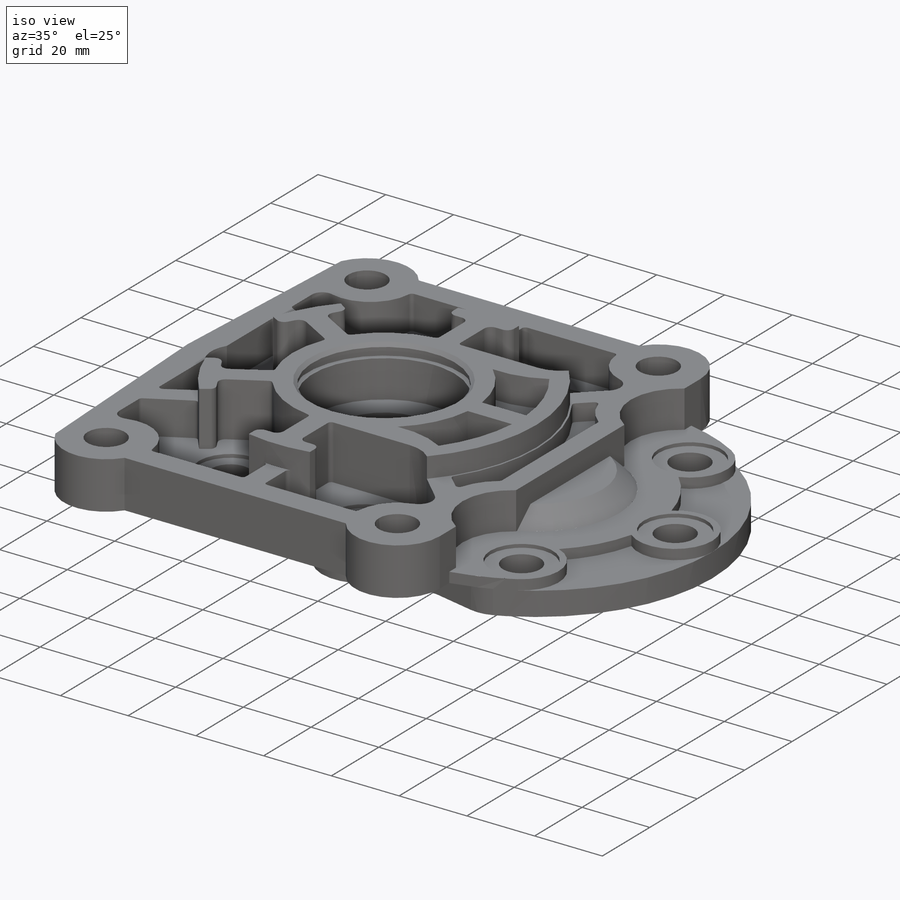
[diagram: iso view]
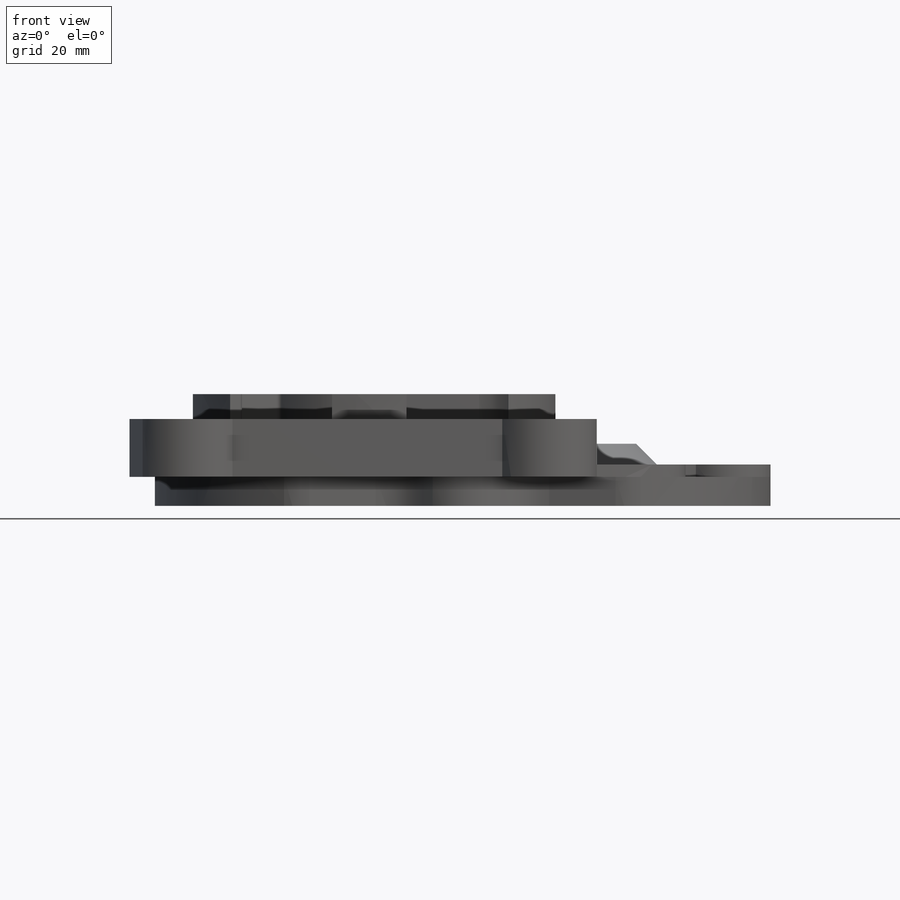
[diagram: front view]
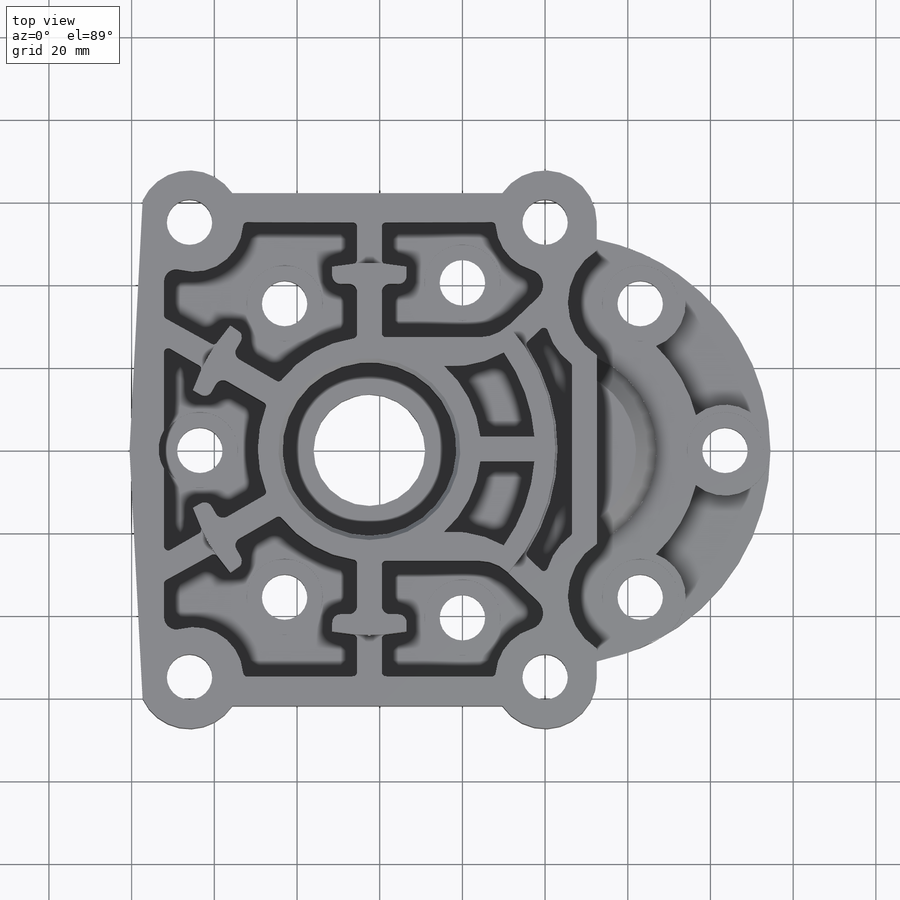
[diagram: top view]
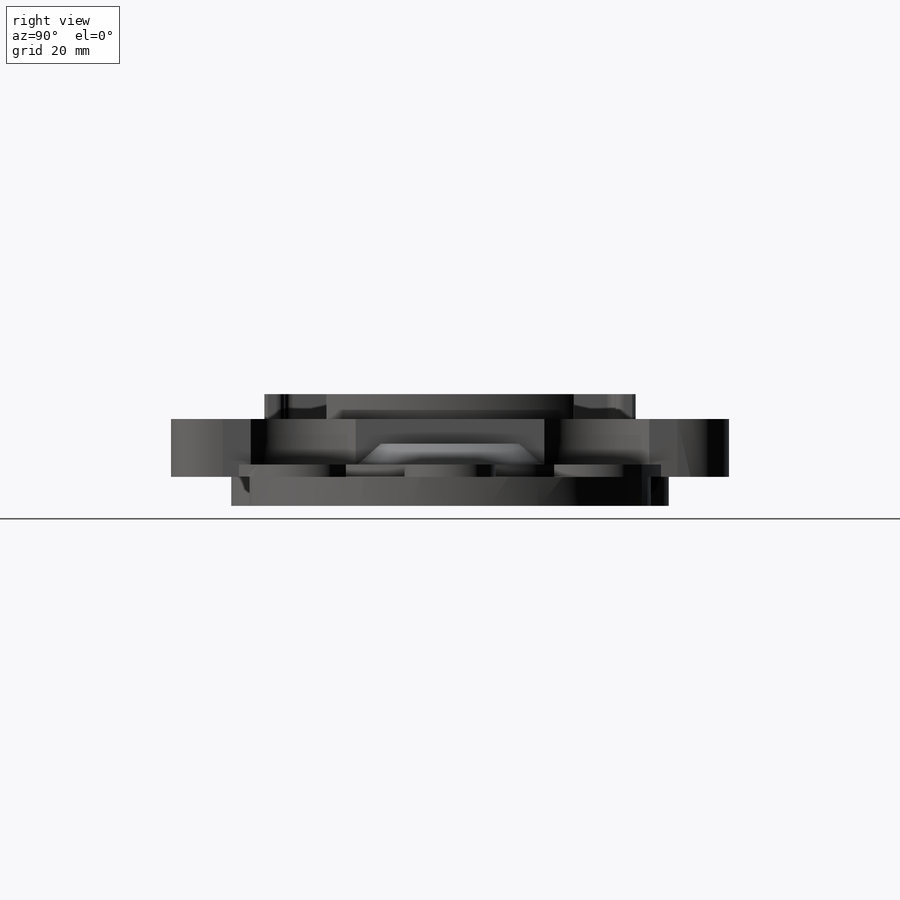
[diagram: right view]
SOLIDWORKS PART (.sldprt)
format: sldprt  version: not decoded by parser v0  size: 1,161,216 bytes
history: native  units: mm
features: sketch x28, cut_extrude x14, extrude x5, plane x4, hole x4, material x1, pattern_circular x1, fillet x1, cut_revolve x1, chamfer x1 (+8 scaffold rows collapsed)
feature tree (68):
  scaffold x8  (default folders/planes/origin — collapsed)
  material  "АЛ8Т4 ГОСТ 1583-93"
  plane  "Спереди"
  plane  "Сверху"
  plane  "Справа"
  sketch  "Эскиз1"  dims[c1.D2=27.0mm c1.D3=27.0mm c1.D4=104.0mm c1.D5=104.0mm c1.D6=30.0mm c1.D7=30.0mm c1.D9=25.0mm c1.D10=25.0mm c1.D11=25.0mm c1.D12=25.0mm c2.D4=52.0mm c2.D2=52.0mm c2.D5=25.0mm c2.D1=12.5mm c2.D6=12.5mm c2.D10=12.0mm c2.D11=12.0mm c2.D12=10.0mm c3.D1=200.0mm c3.D8=106.0mm c3.D13=38.5mm c3.D3=149.0mm c3.D5=40.0mm c3.D7=40.0mm c3.D9=86.0mm]
  extrude  "Бобышка-Вытянуть1"  Depth=7mm
  plane  "Плоскость1"  Offset=7mm
  sketch  "Эскиз2"  dims[c1.D6=12.0mm c1.D7=12.0mm c1.D11=25.0mm c1.D12=25.0mm c1.D2=30.0mm c1.D3=15.0mm c2.D2=15.0mm c2.D15=12.5mm c2.D1=124.0mm c3.D2=113.0mm c3.D3=3.0mm c3.D4=6.0mm c3.D5=3.0mm c3.D8=74.0mm c3.D9=12.0mm c3.D10=55.0mm c4.D5=71.0mm c4.D9=15.0mm c4.D13=113.0mm c4.D14=124.0mm c4.D15=~57.681706mm c5.D15=87.0deg c5.D16=~57.760967mm c6.D16=~86.998075deg c6.D4=~38.538941mm c6.D9=8.0mm c7.D4=6.0mm]
  extrude  "Бобышка-Вытянуть2"  Depth=14mm
  sketch  "Эскиз4"  dims[D1=90.0mm D2=10.0mm]
  extrude  "Бобышка-Вытянуть3"  Depth=6mm
  sketch  "Эскиз5"  dims[D1=42.0mm]
  cut_extrude  "Вырез-Вытянуть2"  Depth=15mm
  sketch  "Эскиз6"  dims[D1=27.0mm]
  cut_extrude  "Вырез-Вытянуть3"  [1 undecoded]
  sketch  "Эскиз8"  dims[c1.D1=54.0mm c1.D5=2.0mm c1.D8=24.0mm c1.D7=10.0mm c1.D9=4.0mm c1.D10=1.0mm c1.D11=1.0mm c1.D12=1.0mm c2.D8=12.0mm c2.D2=6.0mm c2.D3=5.0mm c2.D4=18.0mm c2.D6=10.0mm c2.D7=27.0mm c2.D13=4.5mm]
  cut_extrude  "Вырез-Вытянуть4"  Depth=10mm
  sketch  "Эскиз9"  dims[c1.D3=2.0mm c1.D4=1.0mm c1.D5=1.0mm c1.D6=54.0mm c1.D10=18.0mm c1.D12=1.0mm c1.D13=54.0mm c1.D2=1.0mm c2.D3=3.0mm c2.D4=1.0mm c2.D1=6.0mm c2.D2=18.0mm c2.D8=~60.336635mm c3.D8=177.0deg c4.D8=~8.660254mm c5.D8=30.0deg c6.D8=~68.70887mm c7.D8=30.0deg c7.D9=~18.465053mm c7.D11=42.0mm c7.D4=~11.482801mm c8.D4=~241.110844deg c9.D4=~13.114867mm]
  cut_extrude  "Вырез-Вытянуть5"  Depth=10mm
  sketch  "Эскиз10"  dims[D1=54.0mm D2=80.0mm D4=25.0mm D3=6.0mm D5=45.0mm D6=20.0mm]
  cut_extrude  "Вырез-Вытянуть6"  Depth=8mm
  hole  "Цековка для  винта с круглой головкой M101"  [1 undecoded]
  sketch  "Эскиз13"  dims[D2=27.0mm D1=41.0mm]
  sketch  "Эскиз14"  dims[hole-wizard template sketch: 41 standard entries collapsed; hole parameters kept: c12.Диаметр сквозного отверстия=11.0mm c12.Глубина сквозного отверстия=11.0mm c12.Диаметр цековки=18.5mm c12.Глубина цековки=1.0mm]
  pattern_circular  "Круговой массив1"  Count=6 Angle=60deg
  hole  "Цековка для  винта с круглой головкой M103"  [1 undecoded]
  sketch  "Эскиз30"  dims[D1=81.0mm]
  sketch  "Эскиз29"  dims[hole-wizard template sketch: 41 standard entries collapsed; hole parameters kept: c12.Диаметр сквозного отверстия=11.0mm c12.Глубина сквозного отверстия=11.0mm c12.Диаметр цековки=18.5mm c12.Глубина цековки=1.0mm]
  sketch  "Эскиз15"  dims[c1.D2=22.0mm c1.D6=104.0mm c1.D7=35.0mm c1.D8=35.0mm c1.D9=7.0mm c1.D1=17.0mm c1.D4=~74.862076mm c2.D4=60.0deg c2.D5=~74.862076mm c3.D5=60.0deg c3.D3=6.0]
  extrude  "Бобышка-Вытянуть4"  Depth=3mm
  sketch  "Эскиз16"  dims[D1=5.25mm D2=10.5mm]
  extrude  "Бобышка-Вытянуть5"  Depth=5mm
  hole  "Цековка для  винта с круглой головкой M102"  [1 undecoded]
  sketch  "Эскиз18"
  sketch  "Эскиз17"  dims[hole-wizard template sketch: 41 standard entries collapsed; hole parameters kept: c12.Диаметр сквозного отверстия=11.0mm c12.Глубина сквозного отверстия=10.0mm c12.Диаметр цековки=18.5mm c12.Глубина цековки=1.0mm]
  sketch  "Эскиз19"  dims[D1=91.0mm D5=30.0mm D9=30.0mm D10=1.0mm D2=6.0mm D3=6.0mm D4=6.0mm D6=7.0mm D7=33.0mm D8=33.0mm]
  cut_extrude  "Вырез-Вытянуть7"  Depth=5mm
  sketch  "Эскиз20"  dims[c1.D1=33.5mm c1.D3=52.0mm c1.D4=52.0mm c1.D5=33.5mm c1.D6=9.25mm c1.D7=9.25mm c1.D11=4.0mm c1.D2=97.0mm c1.D8=~21.235637mm c2.D8=90.0deg c2.D9=~20.756216mm c3.D9=90.0deg c3.D10=11.0mm]
  cut_extrude  "Вырез-Вытянуть8"  Depth=4mm
  sketch  "Эскиз21"  dims[D1=56.0mm D2=33.0mm]
  cut_extrude  "Вырез-Вытянуть9"  Depth=4mm
  sketch  "Эскиз22"  dims[D1=27.0mm]
  cut_extrude  "Вырез-Вытянуть10"  Depth=5mm
  sketch  "Эскиз23"  dims[D1=26.0mm]
  cut_extrude  "Вырез-Вытянуть11"  Depth=6mm
  fillet  "Скругление1"  Radius=4mm
  sketch  "Эскиз24"  dims[c1.D1=72.0mm c1.D2=90.0mm c1.D7=2.0mm c1.D3=9.0mm c2.D3=30.0deg c2.D4=41.0mm c3.D4=30.0deg c3.D5=41.0mm c4.D5=30.0deg c4.D6=9.0mm c5.D6=30.0deg]
  cut_extrude  "Вырез-Вытянуть12"  Depth=7mm
  sketch  "Эскиз26"  dims[c1.D1=90.0mm c1.D2=72.0mm c1.D7=2.0mm c1.D8=2.0mm c1.D3=~55.814745mm c2.D3=30.0deg c2.D4=~57.706261mm c3.D4=30.0deg c3.D5=~15.477576mm c4.D5=30.0deg c4.D6=~32.514426mm c5.D6=30.0deg]
  cut_extrude  "Вырез-Вытянуть13"  Depth=1.5mm
  sketch  "Эскиз27"  dims[D1=13.0mm]
  cut_extrude  "Вырез-Вытянуть14"  Depth=5mm
  sketch  "Эскиз28"  dims[D1=13.0mm]
  cut_extrude  "Вырез-Вытянуть15"  Depth=9mm
  hole  "Цековка для  винта с круглой головкой M104"  [1 undecoded]
  sketch  "Эскиз32"  dims[D1=~112.864481mm]
  sketch  "Эскиз31"  dims[hole-wizard template sketch: 41 standard entries collapsed; hole parameters kept: c12.Диаметр сквозного отверстия=11.0mm c12.Глубина сквозного отверстия=20.0mm c12.Диаметр цековки=18.0mm c12.Глубина цековки=1.0mm]
  sketch  "Эскиз33"  dims[D1=22.5mm D2=22.5mm D3=2.0mm D4=2.0mm D5=5.0mm]
  cut_revolve  "Вырез-Повернуть1"  Angle=360deg
  chamfer  "Фаска1"  Distance=1mm Angle=45deg
decode coverage: 49 of 55 modeling features carry decoded parameters
note: ~ marks probable driven/reference dimensions
note: 5 parameter values undecoded
summary: no parameter record found for 5 features
note: suppression state not decoded; provenance and decode notes live in map.json
